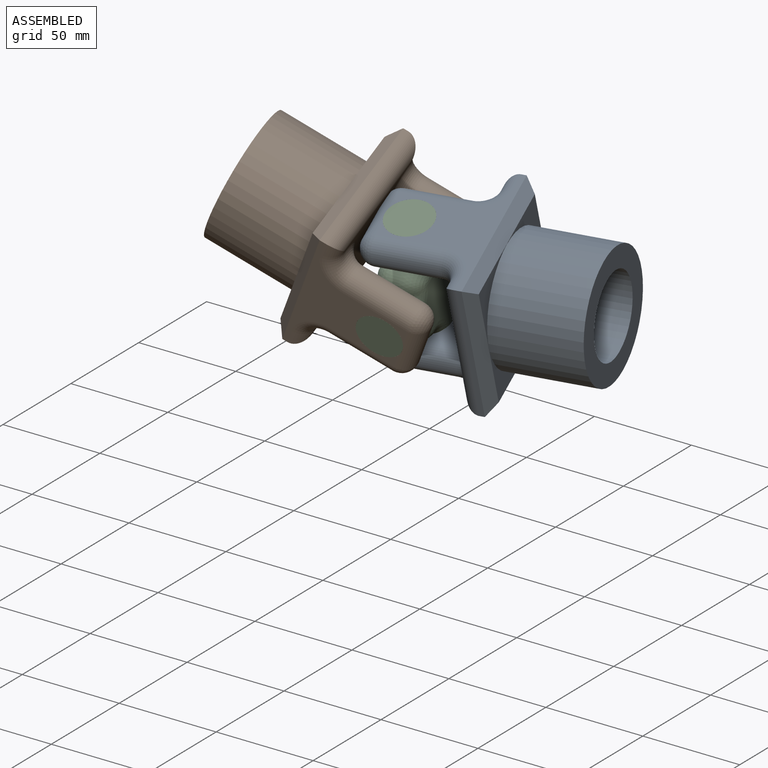
[diagram: assembled view]
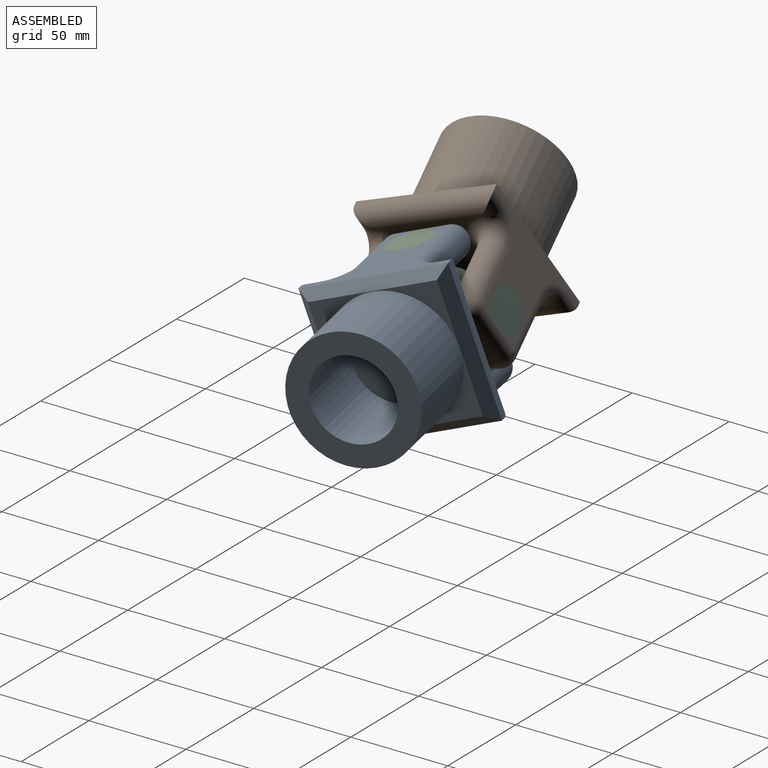
[diagram: assembled view, second angle]
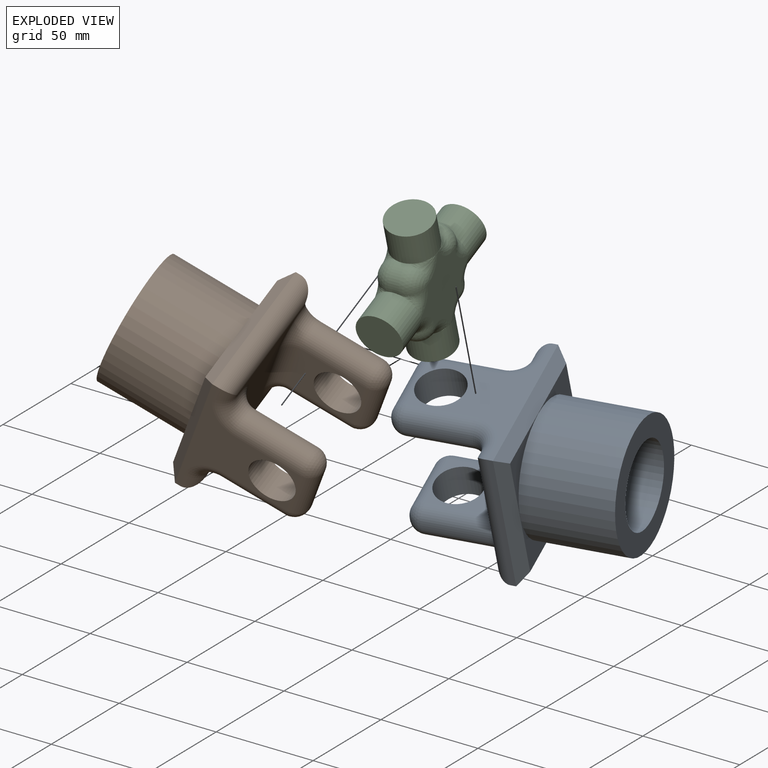
[diagram: exploded view]
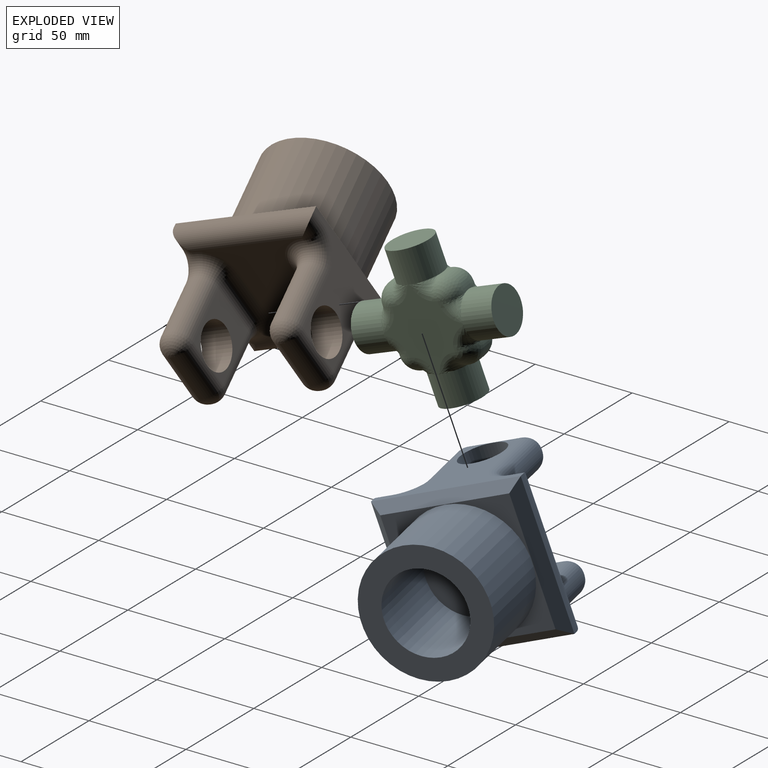
[diagram: exploded view, second angle]
ASSEMBLY  parts=3 mates=2
PART A: 68 faces, bbox 73.3x73.3x106.4 mm
  f0: cylinder r=7.62mm len=26.31mm, axis (0,-1,0), area 307.4mm2, adj f16,f17,f23,f34,f67
  f1: cylinder r=7.62mm len=26.31mm, axis (0,1,0), area 307.4mm2, adj f19,f21,f30,f44,f66
  f2: cylinder r=7.62mm len=26.31mm, axis (0,1,0), area 307.4mm2, adj f9,f17,f33,f46,f67
  f3: cylinder r=7.62mm len=26.31mm, axis (0,-1,0), area 307.4mm2, adj f11,f21,f45,f54,f66
  f4: cylinder r=20.49mm len=44.45mm, axis (0,0,-1), area 5724mm2, adj f6,f13
  f5: cylinder r=31.42mm len=62.83mm, axis (0,0,-1), area 8774.4mm2, adj f6,f7
  f6: plane 62.83x62.83mm, normal (0,0,1), area 1781.2mm2, adj f4,f5
  f7: plane 63.14x63.14mm, normal (0,0,1), area 886.4mm2, adj f5,f62,f63,f64,f65
  f8: plane 58.06x58.06mm, normal (0,0,-1), area 1767.6mm2, adj f22,f24,f26,f31,f35,f36,f42,f43
  f9: plane 73.3x49.28mm, normal (1,0,0), area 1112.9mm2, adj f2,f10,f12,f22,f25,f27,f51,f55
  f10: plane 73.3x2.54mm, normal (0,-1,0), area 186.2mm2, adj f9,f11,f60,f64
  f11: plane 73.3x49.28mm, normal (-1,0,0), area 1112.9mm2, adj f3,f10,f12,f26,f32,f39,f57,f59
  f12: plane 73.3x2.54mm, normal (0,1,0), area 186.2mm2, adj f9,f11,f24,f63
  f13: plane 40.99x40.99mm, normal (0,0,1), area 1319.6mm2, adj f4
  f14: plane 31.5x0.64mm, normal (0,1,0), area 20mm2, adj f27,f28,f29,f31
  f15: plane 31.5x0.64mm, normal (0,-1,0), area 20mm2, adj f40,f41,f51,f52
  f16: plane 31.5x26.31mm, normal (-1,0,0), area 425.9mm2, adj f0,f29,f41,f42,f67
  f17: plane 26.31x0.64mm, normal (0,0,-1), area 16.7mm2, adj f0,f2,f28,f40
  f18: plane 31.5x0.64mm, normal (0,1,0), area 20mm2, adj f36,f37,f38,f39
  f19: plane 31.5x26.31mm, normal (1,0,0), area 425.9mm2, adj f1,f37,f48,f49,f66
  f20: plane 31.5x0.64mm, normal (0,-1,0), area 20mm2, adj f49,f50,f56,f57
  f21: plane 26.31x0.64mm, normal (0,0,-1), area 16.7mm2, adj f1,f3,f38,f50
  f22: cylinder r=7.62mm len=8.26mm, axis (0,-1,0), area 65.7mm2, adj f8,f9,f24,f25
  f23: sphere r=7.62mm, area 91.2mm2, adj f0,f28,f29
  f24: cylinder r=7.62mm len=73.3mm, axis (1,0,0), area 811.1mm2, adj f8,f12,f22,f26
  f25: torus R=15.24mm, axis (-1,0,0), area 195.3mm2, adj f9,f22,f27,f31
  f26: cylinder r=7.62mm len=8.26mm, axis (0,1,0), area 65.7mm2, adj f8,f11,f24,f32
  f27: cylinder r=7.62mm len=31.5mm, axis (0,0,-1), area 377mm2, adj f9,f14,f25,f33
  f28: cylinder r=7.62mm len=7.62mm, axis (-1,0,0), area 7.6mm2, adj f14,f17,f23,f33
  f29: cylinder r=7.62mm len=31.5mm, axis (0,0,1), area 377mm2, adj f14,f16,f23,f35
  f30: sphere r=7.62mm, area 91.2mm2, adj f1,f37,f38
  f31: cylinder r=7.62mm len=7.62mm, axis (-1,0,0), area 7.6mm2, adj f8,f14,f25,f35
  f32: torus R=15.24mm, axis (-1,0,0), area 195.3mm2, adj f11,f26,f36,f39
  f33: sphere r=7.62mm, area 91.2mm2, adj f2,f27,f28
  f34: sphere r=7.62mm, area 91.2mm2, adj f0,f40,f41
  f35: torus R=15.24mm, axis (0,0,1), area 195.3mm2, adj f8,f29,f31,f42
  f36: cylinder r=7.62mm len=7.62mm, axis (-1,0,0), area 7.6mm2, adj f8,f18,f32,f43
  f37: cylinder r=7.62mm len=31.5mm, axis (0,0,1), area 377mm2, adj f18,f19,f30,f43
  f38: cylinder r=7.62mm len=7.62mm, axis (-1,0,0), area 7.6mm2, adj f18,f21,f30,f45
  f39: cylinder r=7.62mm len=31.5mm, axis (0,0,-1), area 377mm2, adj f11,f18,f32,f45
  f40: cylinder r=7.62mm len=7.62mm, axis (1,0,0), area 7.6mm2, adj f15,f17,f34,f46
  f41: cylinder r=7.62mm len=31.5mm, axis (0,0,-1), area 377mm2, adj f15,f16,f34,f47
  f42: cylinder r=7.62mm len=26.31mm, axis (0,-1,0), area 315mm2, adj f8,f16,f35,f47
  f43: torus R=15.24mm, axis (0,0,1), area 195.3mm2, adj f8,f36,f37,f48
  f44: sphere r=7.62mm, area 91.2mm2, adj f1,f49,f50
  f45: sphere r=7.62mm, area 91.2mm2, adj f3,f38,f39
  f46: sphere r=7.62mm, area 91.2mm2, adj f2,f40,f51
  f47: torus R=15.24mm, axis (0,0,1), area 195.3mm2, adj f8,f41,f42,f52
  f48: cylinder r=7.62mm len=26.31mm, axis (0,1,0), area 315mm2, adj f8,f19,f43,f53
  f49: cylinder r=7.62mm len=31.5mm, axis (0,0,-1), area 377mm2, adj f19,f20,f44,f53
  f50: cylinder r=7.62mm len=7.62mm, axis (1,0,0), area 7.6mm2, adj f20,f21,f44,f54
  f51: cylinder r=7.62mm len=31.5mm, axis (0,0,1), area 377mm2, adj f9,f15,f46,f55
  f52: cylinder r=7.62mm len=7.62mm, axis (1,0,0), area 7.6mm2, adj f8,f15,f47,f55
  f53: torus R=15.24mm, axis (0,0,1), area 195.3mm2, adj f8,f48,f49,f56
  f54: sphere r=7.62mm, area 91.2mm2, adj f3,f50,f57
  f55: torus R=15.24mm, axis (-1,0,0), area 195.3mm2, adj f9,f51,f52,f58
  f56: cylinder r=7.62mm len=7.62mm, axis (1,0,0), area 7.6mm2, adj f8,f20,f53,f59
  f57: cylinder r=7.62mm len=31.5mm, axis (0,0,1), area 377mm2, adj f11,f20,f54,f59
  f58: cylinder r=7.62mm len=8.26mm, axis (0,-1,0), area 65.7mm2, adj f8,f9,f55,f60
  f59: torus R=15.24mm, axis (-1,0,0), area 195.3mm2, adj f11,f56,f57,f61
  f60: cylinder r=7.62mm len=73.3mm, axis (-1,0,0), area 811.1mm2, adj f8,f10,f58,f61
  f61: cylinder r=7.62mm len=8.26mm, axis (0,1,0), area 65.7mm2, adj f8,f11,f59,f60
  f62: plane 73.3x5.08mm, normal (0.71,0,0.71), area 490.1mm2, adj f7,f9,f63,f64
  f63: plane 73.3x5.08mm, normal (0,0.71,0.71), area 490.1mm2, adj f7,f12,f62,f65
  f64: plane 73.3x5.08mm, normal (0,-0.71,0.71), area 490.1mm2, adj f7,f10,f62,f65
  f65: plane 73.3x5.08mm, normal (-0.71,0,0.71), area 490.1mm2, adj f7,f11,f63,f64
  f66: cylinder r=11.43mm len=22.86mm, axis (1,0,0), area 1139.2mm2, adj f1,f3,f11,f19
  f67: cylinder r=11.43mm len=22.86mm, axis (1,0,0), area 1139.2mm2, adj f0,f2,f9,f16
PART B: same geometry as A
PART C: 62 faces, bbox 73.3x73.3x22.9 mm
  f0: plane 5.08x0.74mm, normal (1,0,0), area 2.8mm2, adj f16,f18,f25,f44
  f1: plane 5.08x0.74mm, normal (0,1,0), area 2.8mm2, adj f14,f18,f24,f45
  f2: plane 5.08x0.74mm, normal (-1,0,0), area 2.8mm2, adj f12,f19,f29,f50
  f3: plane 5.08x0.74mm, normal (0,-1,0), area 2.8mm2, adj f10,f20,f35,f54
  f4: plane 41.55x41.55mm, normal (0,0,-1), area 800.4mm2, adj f22,f23,f24,f25,f27,f28,f29,f30
  f5: plane 5.08x0.74mm, normal (1,0,0), area 2.8mm2, adj f16,f20,f34,f55
  f6: plane 41.55x41.55mm, normal (0,0,1), area 800.4mm2, adj f42,f43,f44,f45,f47,f48,f49,f50
  f7: plane 5.08x0.74mm, normal (-1,0,0), area 2.8mm2, adj f12,f21,f40,f59
  f8: plane 5.08x0.74mm, normal (0,-1,0), area 2.8mm2, adj f10,f21,f39,f60
  f9: plane 5.08x0.74mm, normal (0,1,0), area 2.8mm2, adj f14,f19,f30,f49
  f10: cylinder r=11.43mm len=22.86mm, axis (0,1,0), area 1140.1mm2, adj f3,f8,f11,f33,f37,f52,f58
  f11: plane 22.86x22.86mm, normal (0,-1,0), area 410.4mm2, adj f10
  f12: cylinder r=11.43mm len=22.86mm, axis (1,0,0), area 1140.1mm2, adj f2,f7,f13,f27,f38,f48,f57
  f13: plane 22.86x22.86mm, normal (-1,0,0), area 410.4mm2, adj f12
  f14: cylinder r=11.43mm len=22.86mm, axis (0,-1,0), area 1140.1mm2, adj f1,f9,f15,f22,f28,f43,f47
  f15: plane 22.86x22.86mm, normal (0,1,0), area 410.4mm2, adj f14
  f16: cylinder r=11.43mm len=22.86mm, axis (-1,0,0), area 1140.1mm2, adj f0,f5,f17,f23,f32,f42,f53
  f17: plane 22.86x22.86mm, normal (1,0,0), area 410.4mm2, adj f16
  f18: cylinder r=8.89mm len=8.89mm, axis (0,0,1), area 70.9mm2, adj f0,f1,f26,f46
  f19: cylinder r=8.89mm len=8.89mm, axis (0,0,-1), area 70.9mm2, adj f2,f9,f31,f51
  f20: cylinder r=8.89mm len=8.89mm, axis (0,0,-1), area 70.9mm2, adj f3,f5,f36,f56
  f21: cylinder r=8.89mm len=8.89mm, axis (0,0,1), area 70.9mm2, adj f7,f8,f41,f61
  f22: bspline ~12.24x9.13mm, area 80.8mm2, adj f4,f14,f24
  f23: bspline ~12.24x9.13mm, area 80.8mm2, adj f4,f16,f25
  f24: cylinder r=8.89mm len=8.89mm, axis (1,0,0), area 10.4mm2, adj f1,f4,f22,f26
  f25: cylinder r=8.89mm len=8.89mm, axis (0,-1,0), area 10.4mm2, adj f0,f4,f23,f26
  f26: sphere r=8.89mm, area 124.1mm2, adj f18,f24,f25
  f27: bspline ~12.24x9.15mm, area 80.8mm2, adj f4,f12,f29
  f28: bspline ~12.24x9.13mm, area 80.8mm2, adj f4,f14,f30
  f29: cylinder r=8.89mm len=8.89mm, axis (0,1,0), area 10.4mm2, adj f2,f4,f27,f31
  f30: cylinder r=8.89mm len=8.89mm, axis (1,0,0), area 10.4mm2, adj f4,f9,f28,f31
  f31: sphere r=8.89mm, area 124.1mm2, adj f19,f29,f30
  f32: bspline ~12.24x9.13mm, area 80.8mm2, adj f4,f16,f34
  f33: bspline ~12.24x9.15mm, area 80.8mm2, adj f4,f10,f35
  f34: cylinder r=8.89mm len=8.89mm, axis (0,-1,0), area 10.4mm2, adj f4,f5,f32,f36
  f35: cylinder r=8.89mm len=8.89mm, axis (-1,0,0), area 10.4mm2, adj f3,f4,f33,f36
  f36: sphere r=8.89mm, area 124.1mm2, adj f20,f34,f35
  f37: bspline ~12.24x9.15mm, area 80.8mm2, adj f4,f10,f39
  f38: bspline ~12.24x9.15mm, area 80.8mm2, adj f4,f12,f40
  f39: cylinder r=8.89mm len=8.89mm, axis (-1,0,0), area 10.4mm2, adj f4,f8,f37,f41
  f40: cylinder r=8.89mm len=8.89mm, axis (0,1,0), area 10.4mm2, adj f4,f7,f38,f41
  f41: sphere r=8.89mm, area 124.1mm2, adj f21,f39,f40
  f42: bspline ~12.24x9.15mm, area 80.8mm2, adj f6,f16,f44
  f43: bspline ~12.24x9.15mm, area 80.8mm2, adj f6,f14,f45
  f44: cylinder r=8.89mm len=8.89mm, axis (0,1,0), area 10.4mm2, adj f0,f6,f42,f46
  f45: cylinder r=8.89mm len=8.89mm, axis (-1,0,0), area 10.4mm2, adj f1,f6,f43,f46
  f46: sphere r=8.89mm, area 124.1mm2, adj f18,f44,f45
  f47: bspline ~12.24x9.15mm, area 80.8mm2, adj f6,f14,f49
  f48: bspline ~12.24x9.13mm, area 80.8mm2, adj f6,f12,f50
  f49: cylinder r=8.89mm len=8.89mm, axis (-1,0,0), area 10.4mm2, adj f6,f9,f47,f51
  f50: cylinder r=8.89mm len=8.89mm, axis (0,-1,0), area 10.4mm2, adj f2,f6,f48,f51
  f51: sphere r=8.89mm, area 124.1mm2, adj f19,f49,f50
  f52: bspline ~12.24x9.13mm, area 80.8mm2, adj f6,f10,f54
  f53: bspline ~12.24x9.15mm, area 80.8mm2, adj f6,f16,f55
  f54: cylinder r=8.89mm len=8.89mm, axis (1,0,0), area 10.4mm2, adj f3,f6,f52,f56
  f55: cylinder r=8.89mm len=8.89mm, axis (0,1,0), area 10.4mm2, adj f5,f6,f53,f56
  f56: sphere r=8.89mm, area 124.1mm2, adj f20,f54,f55
  f57: bspline ~12.24x9.13mm, area 80.8mm2, adj f6,f12,f59
  f58: bspline ~12.24x9.13mm, area 80.8mm2, adj f6,f10,f60
  f59: cylinder r=8.89mm len=8.89mm, axis (0,-1,0), area 10.4mm2, adj f6,f7,f57,f61
  f60: cylinder r=8.89mm len=8.89mm, axis (1,0,0), area 10.4mm2, adj f6,f8,f58,f61
  f61: sphere r=8.89mm, area 124.1mm2, adj f21,f59,f60
PLACE A rot(axis=(0.07,0.96,0.26),94.2deg) t=(82.16,75.52,-65.7)mm
PLACE B rot(axis=(0.58,-0.3,-0.76),113.4deg) t=(-0.21,57.44,-47.84)mm
PLACE C rot(axis=(0.21,-0.97,-0.13),88.6deg) t=(38.99,66.72,-65.69)mm
MATE revolute C.f16 <-> A.f66  axis (-0.07,0.33,-0.94) through (36.51,78.83,-100.19)mm
MATE revolute C.f10 <-> B.f66  axis (-0.07,0.94,0.33) through (41.55,32.28,-77.96)mm
